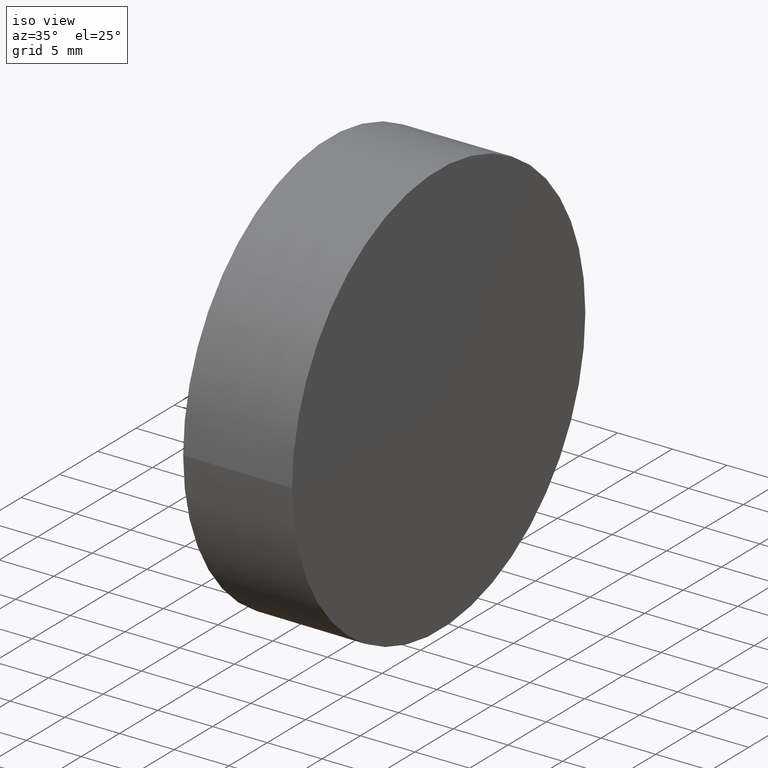
[diagram: clean part render]
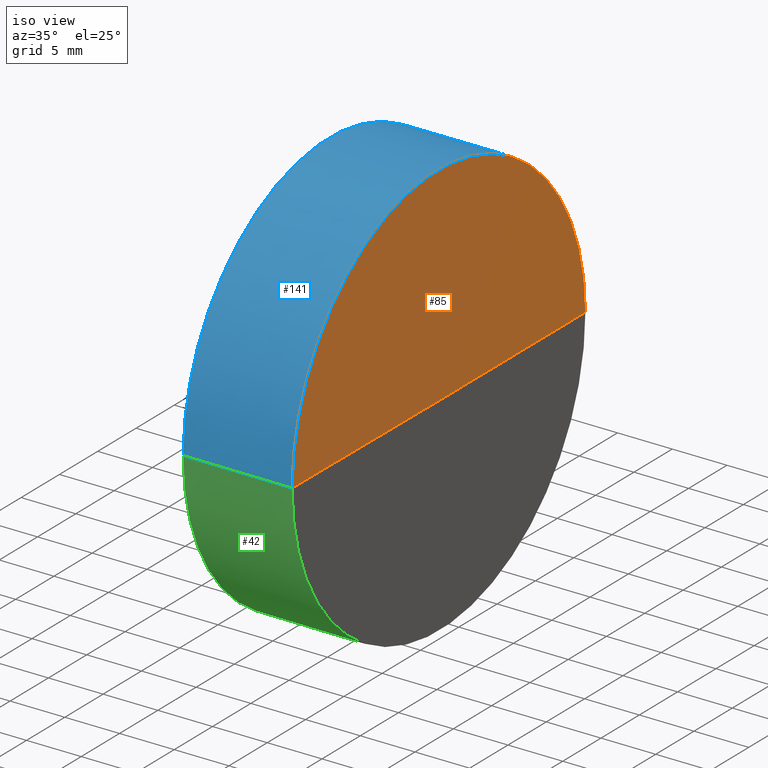
[diagram: same view with three faces highlighted in distinct colors, each labeled with its STEP entity id]
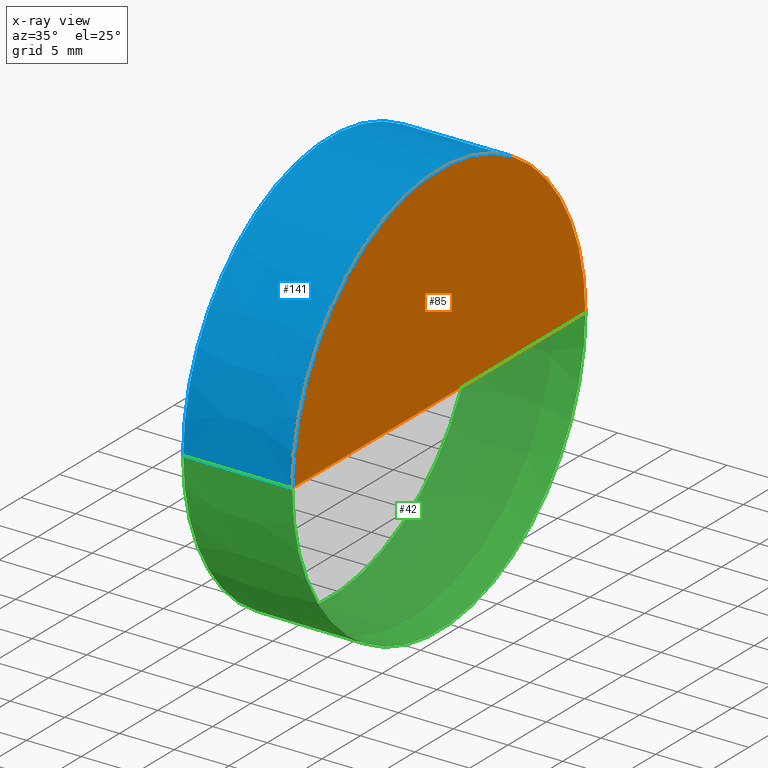
[diagram: x-ray of the same camera — body ghosted, the three highlighted faces saturated]
A machine part, iso view with three faces highlighted in distinct colors.
The next image is the same camera in x-ray (body ghosted, the three faces saturated) — at least one of them is partly hidden behind the body in this view.
Their STEP definitions:

[orange] entity #85 — the highlighted conical surface has half-angle 89.813 deg.
#1 = DIRECTION ( 'NONE',  ( -0.003255957023717566800, -0.9999946993578814300, 0.0000000000000000000 ) ) ;
#16 = CARTESIAN_POINT ( 'NONE',  ( 270.1615312381603600, 77.24056043020593200, 0.0000000000000000000 ) ) ;
#22 = DIRECTION ( 'NONE',  ( -0.003255957023403785300, -0.9999946993578825400, 0.0000000000000000000 ) ) ;
#33 = DIRECTION ( 'NONE',  ( -1.795438797635994800E-016, 1.000000000000000000, 1.224640307732949200E-016 ) ) ;
#34 = VERTEX_POINT ( 'NONE', #155 ) ;
#36 = VECTOR ( 'NONE', #105, 1000.000000000000200 ) ;
#41 = CONICAL_SURFACE ( 'NONE', #127, 0.05261919772502674600, 1.567540364018278300 ) ;
#49 = ORIENTED_EDGE ( 'NONE', *, *, #123, .F. ) ;
#51 = LINE ( 'NONE', #133, #152 ) ;
#68 = EDGE_CURVE ( 'NONE', #138, #34, #51, .T. ) ;
#76 = CARTESIAN_POINT ( 'NONE',  ( 270.1617025640068200, 77.24055987237336800, 0.0000000000000000000 ) ) ;
#85 = ADVANCED_FACE ( 'NONE', ( #154 ), #41, .T. ) ;
#91 = DIRECTION ( 'NONE',  ( -0.9999946993578815400, 0.003255957023718254200, -0.0000000000000000000 ) ) ;
#92 = CIRCLE ( 'NONE', #157, 19.05251848552478600 ) ;
#96 = ORIENTED_EDGE ( 'NONE', *, *, #167, .F. ) ;
#103 = CARTESIAN_POINT ( 'NONE',  ( 270.1613599123139700, 77.18794151139643100, 0.0000000000000000000 ) ) ;
#105 = DIRECTION ( 'NONE',  ( -0.006511879530110813700, -0.9999787974877193400, 0.0000000000000000000 ) ) ;
#109 = CARTESIAN_POINT ( 'NONE',  ( 270.0376342012418100, 58.18834435912466300, 0.0000000000000000000 ) ) ;
#116 = DIRECTION ( 'NONE',  ( -0.9999946993578815400, 0.003255957023718254200, -0.0000000000000000000 ) ) ;
#123 = EDGE_CURVE ( 'NONE', #175, #34, #92, .T. ) ;
#125 = ORIENTED_EDGE ( 'NONE', *, *, #68, .T. ) ;
#127 = AXIS2_PLACEMENT_3D ( 'NONE', #16, #116, #22 ) ;
#128 = LINE ( 'NONE', #103, #36 ) ;
#133 = CARTESIAN_POINT ( 'NONE',  ( 270.1617025640068200, 77.29317934901541800, 6.443993206765571700E-018 ) ) ;
#138 = VERTEX_POINT ( 'NONE', #76 ) ;
#144 = CARTESIAN_POINT ( 'NONE',  ( 270.0996683826243200, 77.24076185407258800, 0.0000000000000000000 ) ) ;
#152 = VECTOR ( 'NONE', #33, 1000.000000000000000 ) ;
#154 = FACE_OUTER_BOUND ( 'NONE', #173, .T. ) ;
#155 = CARTESIAN_POINT ( 'NONE',  ( 270.1617025640068200, 96.29317934901035900, 2.333260577898748200E-015 ) ) ;
#157 = AXIS2_PLACEMENT_3D ( 'NONE', #144, #91, #1 ) ;
#167 = EDGE_CURVE ( 'NONE', #138, #175, #128, .T. ) ;
#173 = EDGE_LOOP ( 'NONE', ( #96, #125, #49 ) ) ;
#175 = VERTEX_POINT ( 'NONE', #109 ) ;

[blue] entity #141 — the highlighted conical surface has half-angle 0.187 deg.
#1 = DIRECTION ( 'NONE',  ( -0.003255957023717566800, -0.9999946993578814300, 0.0000000000000000000 ) ) ;
#5 = DIRECTION ( 'NONE',  ( -0.003255957023717929400, -0.9999946993578815400, 0.0000000000000000000 ) ) ;
#6 = AXIS2_PLACEMENT_3D ( 'NONE', #134, #162, #93 ) ;
#12 = EDGE_CURVE ( 'NONE', #84, #34, #81, .T. ) ;
#13 = VERTEX_POINT ( 'NONE', #44 ) ;
#14 = EDGE_CURVE ( 'NONE', #13, #175, #136, .T. ) ;
#17 = CARTESIAN_POINT ( 'NONE',  ( 270.1617025640068200, 96.29317934901541800, 0.0000000000000000000 ) ) ;
#26 = ORIENTED_EDGE ( 'NONE', *, *, #123, .T. ) ;
#30 = ORIENTED_EDGE ( 'NONE', *, *, #12, .F. ) ;
#34 = VERTEX_POINT ( 'NONE', #155 ) ;
#44 = CARTESIAN_POINT ( 'NONE',  ( 260.0378462263646500, 58.25346315443084700, 2.329273180552113800E-015 ) ) ;
#45 = CARTESIAN_POINT ( 'NONE',  ( 270.0376342012418700, 58.18834435912974400, 2.333260577899371400E-015 ) ) ;
#46 = DIRECTION ( 'NONE',  ( 1.000000000000000000, -7.502679033599689500E-017, 0.0000000000000000000 ) ) ;
#52 = CARTESIAN_POINT ( 'NONE',  ( 260.0997743951857000, 77.27332125172313200, 0.0000000000000000000 ) ) ;
#55 = VECTOR ( 'NONE', #46, 1000.000000000000000 ) ;
#59 = CIRCLE ( 'NONE', #112, 19.01995891528760300 ) ;
#63 = ORIENTED_EDGE ( 'NONE', *, *, #14, .T. ) ;
#81 = LINE ( 'NONE', #17, #55 ) ;
#84 = VERTEX_POINT ( 'NONE', #102 ) ;
#90 = EDGE_LOOP ( 'NONE', ( #166, #63, #26, #30 ) ) ;
#91 = DIRECTION ( 'NONE',  ( -0.9999946993578815400, 0.003255957023718254200, -0.0000000000000000000 ) ) ;
#92 = CIRCLE ( 'NONE', #157, 19.05251848552478600 ) ;
#93 = DIRECTION ( 'NONE',  ( 0.003255957023717566800, 0.9999946993578814300, 0.0000000000000000000 ) ) ;
#97 = CONICAL_SURFACE ( 'NONE', #6, 19.05251848552478600, 0.003255962776618021900 ) ;
#101 = FACE_OUTER_BOUND ( 'NONE', #90, .T. ) ;
#102 = CARTESIAN_POINT ( 'NONE',  ( 260.1617025640067600, 96.29317934901541800, 0.0000000000000000000 ) ) ;
#109 = CARTESIAN_POINT ( 'NONE',  ( 270.0376342012418100, 58.18834435912466300, 0.0000000000000000000 ) ) ;
#112 = AXIS2_PLACEMENT_3D ( 'NONE', #52, #147, #5 ) ;
#123 = EDGE_CURVE ( 'NONE', #175, #34, #92, .T. ) ;
#134 = CARTESIAN_POINT ( 'NONE',  ( 270.0996683826243200, 77.24076185407258800, 0.0000000000000000000 ) ) ;
#136 = LINE ( 'NONE', #45, #179 ) ;
#141 = ADVANCED_FACE ( 'NONE', ( #101 ), #97, .T. ) ;
#143 = DIRECTION ( 'NONE',  ( 0.9999787974877193400, -0.006511879530110559500, 3.987397347257810100E-019 ) ) ;
#144 = CARTESIAN_POINT ( 'NONE',  ( 270.0996683826243200, 77.24076185407258800, 0.0000000000000000000 ) ) ;
#147 = DIRECTION ( 'NONE',  ( -0.9999946993578815400, 0.003255957023718254200, -0.0000000000000000000 ) ) ;
#155 = CARTESIAN_POINT ( 'NONE',  ( 270.1617025640068200, 96.29317934901035900, 2.333260577898748200E-015 ) ) ;
#157 = AXIS2_PLACEMENT_3D ( 'NONE', #144, #91, #1 ) ;
#162 = DIRECTION ( 'NONE',  ( 0.9999946993578815400, -0.003255957023718254200, 0.0000000000000000000 ) ) ;
#166 = ORIENTED_EDGE ( 'NONE', *, *, #185, .F. ) ;
#175 = VERTEX_POINT ( 'NONE', #109 ) ;
#179 = VECTOR ( 'NONE', #143, 1000.000000000000200 ) ;
#185 = EDGE_CURVE ( 'NONE', #13, #84, #59, .T. ) ;

[green] entity #42 — the highlighted conical surface has half-angle 0.187 deg.
#12 = EDGE_CURVE ( 'NONE', #84, #34, #81, .T. ) ;
#13 = VERTEX_POINT ( 'NONE', #44 ) ;
#14 = EDGE_CURVE ( 'NONE', #13, #175, #136, .T. ) ;
#17 = CARTESIAN_POINT ( 'NONE',  ( 270.1617025640068200, 96.29317934901541800, 0.0000000000000000000 ) ) ;
#24 = EDGE_CURVE ( 'NONE', #34, #175, #39, .T. ) ;
#34 = VERTEX_POINT ( 'NONE', #155 ) ;
#39 = CIRCLE ( 'NONE', #178, 19.05251848552478600 ) ;
#42 = ADVANCED_FACE ( 'NONE', ( #150 ), #122, .T. ) ;
#43 = AXIS2_PLACEMENT_3D ( 'NONE', #61, #100, #71 ) ;
#44 = CARTESIAN_POINT ( 'NONE',  ( 260.0378462263646500, 58.25346315443084700, 2.329273180552113800E-015 ) ) ;
#45 = CARTESIAN_POINT ( 'NONE',  ( 270.0376342012418700, 58.18834435912974400, 2.333260577899371400E-015 ) ) ;
#46 = DIRECTION ( 'NONE',  ( 1.000000000000000000, -7.502679033599689500E-017, 0.0000000000000000000 ) ) ;
#47 = ORIENTED_EDGE ( 'NONE', *, *, #110, .F. ) ;
#48 = DIRECTION ( 'NONE',  ( -0.9999946993578815400, 0.003255957023718254200, -0.0000000000000000000 ) ) ;
#55 = VECTOR ( 'NONE', #46, 1000.000000000000000 ) ;
#57 = DIRECTION ( 'NONE',  ( -0.9999946993578815400, 0.003255957023718254200, -0.0000000000000000000 ) ) ;
#61 = CARTESIAN_POINT ( 'NONE',  ( 270.0996683826243200, 77.24076185407258800, 0.0000000000000000000 ) ) ;
#65 = CARTESIAN_POINT ( 'NONE',  ( 260.0997743951857000, 77.27332125172313200, 0.0000000000000000000 ) ) ;
#69 = ORIENTED_EDGE ( 'NONE', *, *, #24, .T. ) ;
#71 = DIRECTION ( 'NONE',  ( 0.003255957023717566800, 0.9999946993578814300, 0.0000000000000000000 ) ) ;
#73 = DIRECTION ( 'NONE',  ( -0.003255957023717929400, -0.9999946993578815400, 0.0000000000000000000 ) ) ;
#74 = EDGE_LOOP ( 'NONE', ( #124, #47, #131, #69 ) ) ;
#81 = LINE ( 'NONE', #17, #55 ) ;
#84 = VERTEX_POINT ( 'NONE', #102 ) ;
#100 = DIRECTION ( 'NONE',  ( 0.9999946993578815400, -0.003255957023718254200, 0.0000000000000000000 ) ) ;
#102 = CARTESIAN_POINT ( 'NONE',  ( 260.1617025640067600, 96.29317934901541800, 0.0000000000000000000 ) ) ;
#109 = CARTESIAN_POINT ( 'NONE',  ( 270.0376342012418100, 58.18834435912466300, 0.0000000000000000000 ) ) ;
#110 = EDGE_CURVE ( 'NONE', #84, #13, #114, .T. ) ;
#114 = CIRCLE ( 'NONE', #140, 19.01995891528760300 ) ;
#122 = CONICAL_SURFACE ( 'NONE', #43, 19.05251848552478600, 0.003255962776618021900 ) ;
#124 = ORIENTED_EDGE ( 'NONE', *, *, #14, .F. ) ;
#131 = ORIENTED_EDGE ( 'NONE', *, *, #12, .T. ) ;
#136 = LINE ( 'NONE', #45, #179 ) ;
#140 = AXIS2_PLACEMENT_3D ( 'NONE', #65, #48, #73 ) ;
#142 = DIRECTION ( 'NONE',  ( -0.003255957023717566800, -0.9999946993578814300, 0.0000000000000000000 ) ) ;
#143 = DIRECTION ( 'NONE',  ( 0.9999787974877193400, -0.006511879530110559500, 3.987397347257810100E-019 ) ) ;
#150 = FACE_OUTER_BOUND ( 'NONE', #74, .T. ) ;
#155 = CARTESIAN_POINT ( 'NONE',  ( 270.1617025640068200, 96.29317934901035900, 2.333260577898748200E-015 ) ) ;
#175 = VERTEX_POINT ( 'NONE', #109 ) ;
#178 = AXIS2_PLACEMENT_3D ( 'NONE', #184, #57, #142 ) ;
#179 = VECTOR ( 'NONE', #143, 1000.000000000000200 ) ;
#184 = CARTESIAN_POINT ( 'NONE',  ( 270.0996683826243200, 77.24076185407258800, 0.0000000000000000000 ) ) ;